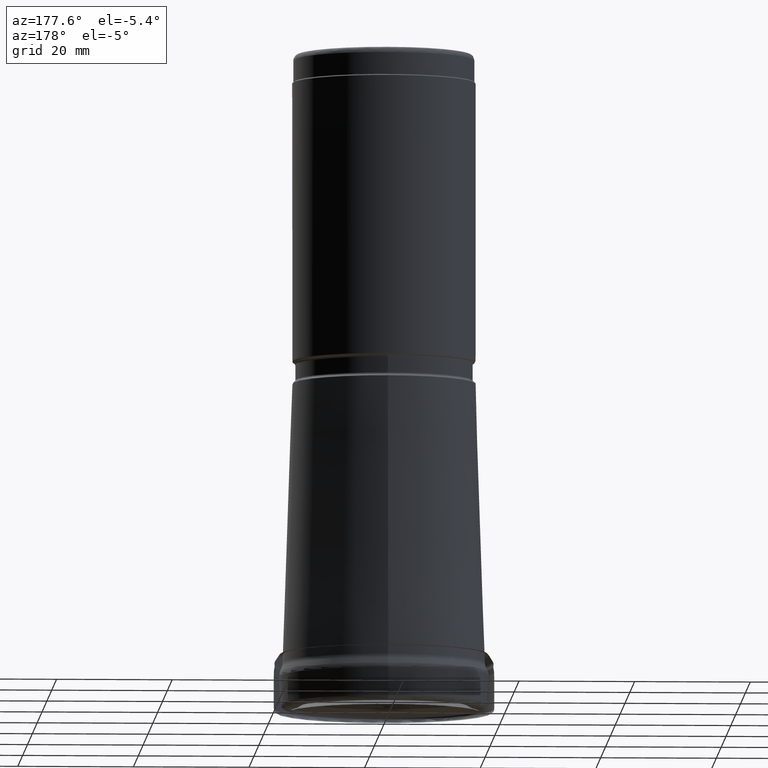
[diagram: clean part render]
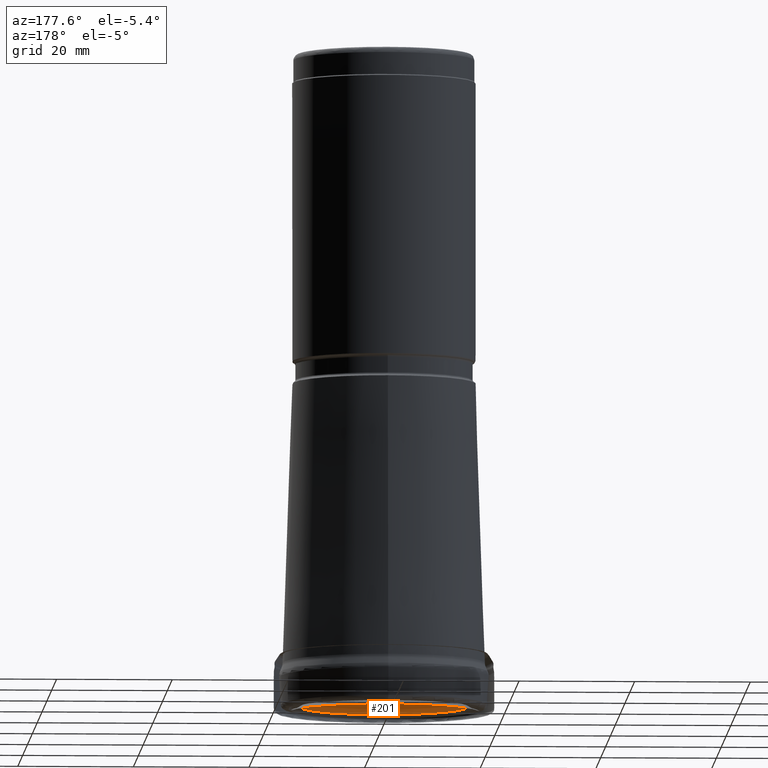
[diagram: same view with one face highlighted and labeled with its STEP entity id]
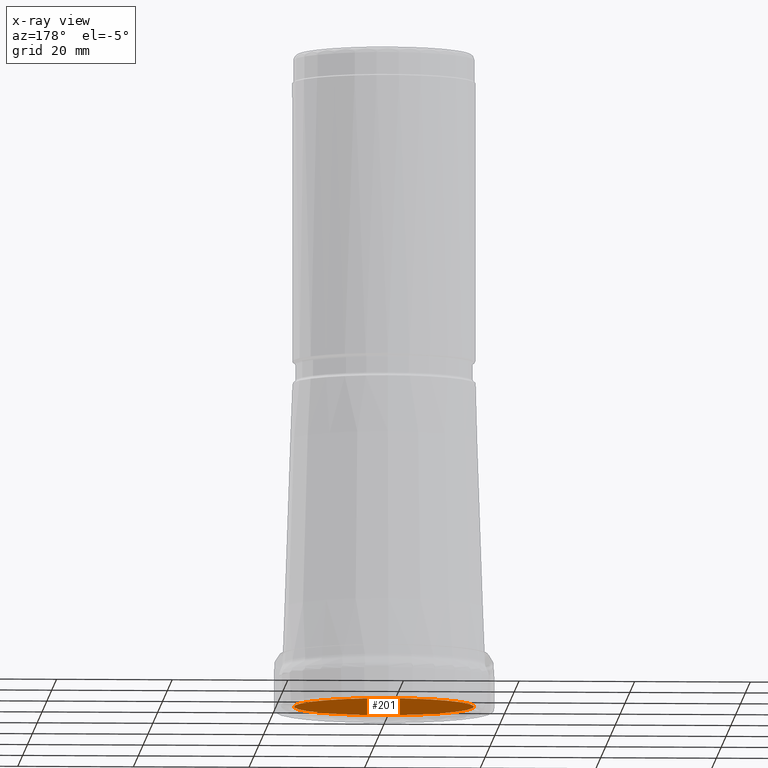
[diagram: x-ray of the same camera — body ghosted, the highlighted face saturated]
A machine part, auxiliary view. The second image highlights one B-rep face of the part: STEP entity #201.
The next image is the same camera in x-ray: the body ghosted, the highlighted face saturated — about 0% of this face is hidden behind the body in this view.
In plain terms, the highlighted planar face has unit normal (0, -0, -1).
Its self-contained STEP definition (entity closure, byte-faithful):
#178=PLANE('',#905);
#201=ADVANCED_FACE('',(#296,#297),#178,.T.);
#296=FACE_BOUND('',#394,.T.);
#297=FACE_BOUND('',#395,.T.);
#394=EDGE_LOOP('',(#520));
#395=EDGE_LOOP('',(#521));
#520=ORIENTED_EDGE('',*,*,#733,.T.);
#521=ORIENTED_EDGE('',*,*,#734,.T.);
#662=VERTEX_POINT('',#1563);
#663=VERTEX_POINT('',#1565);
#733=EDGE_CURVE('',#662,#662,#788,.T.);
#734=EDGE_CURVE('',#663,#663,#789,.T.);
#788=CIRCLE('',#903,1.);
#789=CIRCLE('',#904,15.5849874975539);
#903=AXIS2_PLACEMENT_3D('',#1562,#1013,#1014);
#904=AXIS2_PLACEMENT_3D('',#1564,#1015,#1016);
#905=AXIS2_PLACEMENT_3D('',#1566,#1017,#1018);
#1013=DIRECTION('',(0.,1.17145536458252E-15,1.));
#1014=DIRECTION('',(0.,-1.,1.0842021724855E-15));
#1015=DIRECTION('',(0.,-1.17145536458252E-15,-1.));
#1016=DIRECTION('',(0.,1.,-1.16872705227484E-15));
#1017=DIRECTION('',(0.,-1.17145536458252E-15,-1.));
#1018=DIRECTION('',(0.,1.,-1.17137202715334E-15));
#1562=CARTESIAN_POINT('',(0.,1.28860090104078E-15,1.1));
#1563=CARTESIAN_POINT('',(0.,-0.999999999999999,1.1));
#1564=CARTESIAN_POINT('',(0.,1.28860090104078E-15,1.1));
#1565=CARTESIAN_POINT('',(0.,15.5849874975539,1.09999999999998));
#1566=CARTESIAN_POINT('',(16.2047914002725,1.28860090104078E-15,1.1));